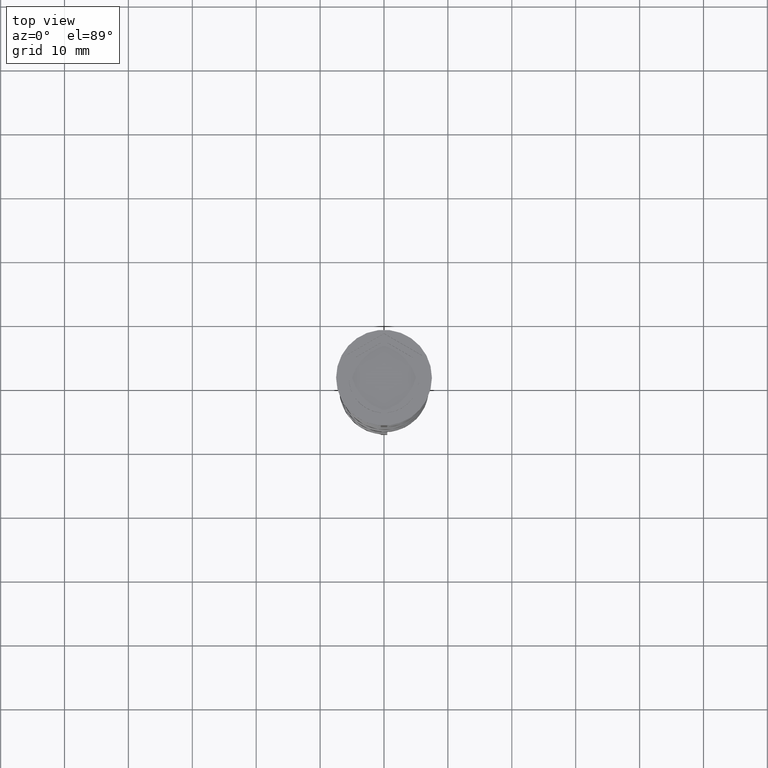
[diagram: clean part render]
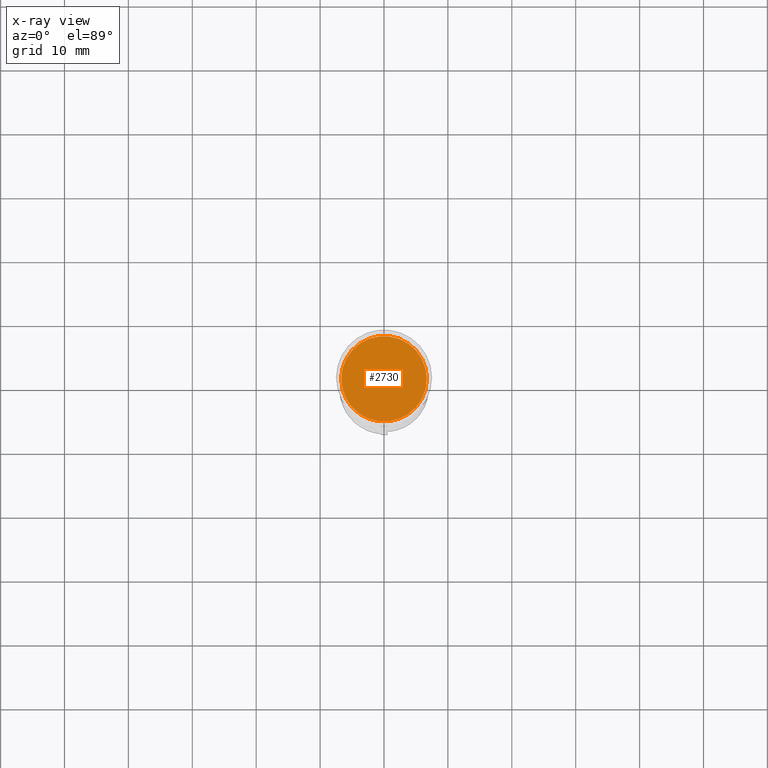
[diagram: x-ray — body ghosted, one internal face saturated and labeled with its STEP entity id]
A machine part, top view, then the same camera in x-ray: the body is ghosted and one INTERNAL B-rep face — a face not visible from any outside direction — is saturated and labeled: STEP entity #2730.
In plain terms, the highlighted planar face has unit normal (0, 0, -1).
Its self-contained STEP definition (entity closure, byte-faithful):
#675 = AXIS2_PLACEMENT_3D ( 'NONE', #1409, #2027, #2295 ) ;
#1085 = DIRECTION ( 'NONE',  ( -1.000000000000000000, 0.000000000000000000, -0.000000000000000000 ) ) ;
#1197 = AXIS2_PLACEMENT_3D ( 'NONE', #1385, #3042, #1085 ) ;
#1385 = CARTESIAN_POINT ( 'NONE',  ( 0.000000000000000000, 0.000000000000000000, -10.50000000000000178 ) ) ;
#1409 = CARTESIAN_POINT ( 'NONE',  ( 0.000000000000000000, 0.000000000000000000, -10.50000000000000178 ) ) ;
#1424 = CARTESIAN_POINT ( 'NONE',  ( 6.700000000000001066, 8.388830574159370862E-16, -10.50000000000000178 ) ) ;
#1485 = AXIS2_PLACEMENT_3D ( 'NONE', #2458, #3075, #1665 ) ;
#1630 = ORIENTED_EDGE ( 'NONE', *, *, #2338, .T. ) ;
#1665 = DIRECTION ( 'NONE',  ( -1.000000000000000000, 0.000000000000000000, 0.000000000000000000 ) ) ;
#2027 = DIRECTION ( 'NONE',  ( -0.000000000000000000, -0.000000000000000000, 1.000000000000000000 ) ) ;
#2038 = EDGE_CURVE ( 'NONE', #3512, #3260, #2884, .T. ) ;
#2057 = CARTESIAN_POINT ( 'NONE',  ( -6.700000000000001066, 0.000000000000000000, -10.50000000000000178 ) ) ;
#2295 = DIRECTION ( 'NONE',  ( -1.000000000000000000, 0.000000000000000000, 0.000000000000000000 ) ) ;
#2338 = EDGE_CURVE ( 'NONE', #3260, #3512, #3004, .T. ) ;
#2458 = CARTESIAN_POINT ( 'NONE',  ( 0.000000000000000000, 0.000000000000000000, -10.50000000000000178 ) ) ;
#2485 = ORIENTED_EDGE ( 'NONE', *, *, #2038, .T. ) ;
#2717 = EDGE_LOOP ( 'NONE', ( #2485, #1630 ) ) ;
#2730 = ADVANCED_FACE ( 'NONE', ( #2746 ), #3597, .F. ) ;
#2746 = FACE_OUTER_BOUND ( 'NONE', #2717, .T. ) ;
#2884 = CIRCLE ( 'NONE', #1485, 6.700000000000001066 ) ;
#3004 = CIRCLE ( 'NONE', #675, 6.700000000000001066 ) ;
#3042 = DIRECTION ( 'NONE',  ( 0.000000000000000000, 0.000000000000000000, -1.000000000000000000 ) ) ;
#3075 = DIRECTION ( 'NONE',  ( -0.000000000000000000, -0.000000000000000000, 1.000000000000000000 ) ) ;
#3260 = VERTEX_POINT ( 'NONE', #1424 ) ;
#3512 = VERTEX_POINT ( 'NONE', #2057 ) ;
#3597 = PLANE ( 'NONE',  #1197 ) ;